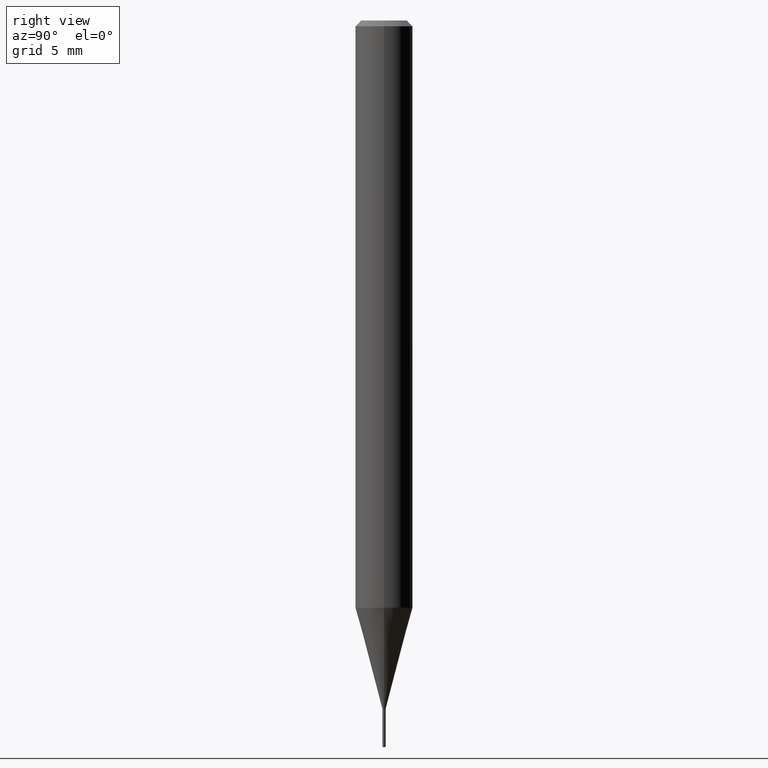
[diagram: clean part render]
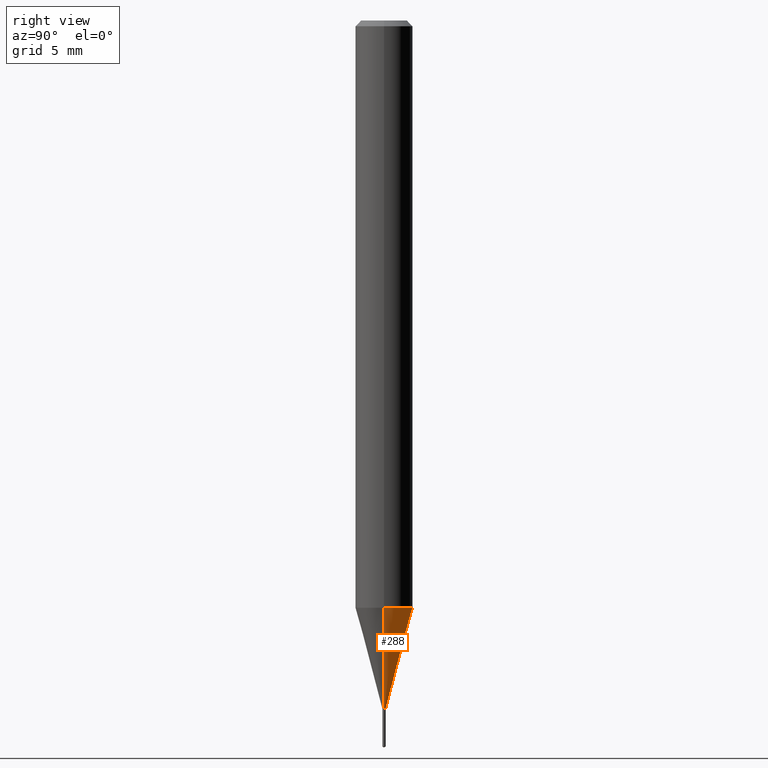
[diagram: same view with one face highlighted and labeled with its STEP entity id]
A machine part, right view. The second image highlights one B-rep face of the part: STEP entity #288.
In plain terms, the highlighted conical surface has half-angle 15 deg.
Its self-contained STEP definition (entity closure, byte-faithful):
#9 = CARTESIAN_POINT ( 'NONE',  ( 0.003350000000000000113, -4.968727093307679884E-15, -1.416399999999999881 ) ) ;
#18 = CIRCLE ( 'NONE', #328, 0.003350000000000000113 ) ;
#25 = DIRECTION ( 'NONE',  ( 1.000000000000000000, -6.982962677686262766E-15, 0.000000000000000000 ) ) ;
#37 = DIRECTION ( 'NONE',  ( 0.2588190451025212391, 1.565188264969622362E-15, 0.9659258262890679791 ) ) ;
#45 = CARTESIAN_POINT ( 'NONE',  ( 3.463762017080627501E-29, -4.945334168337430947E-15, -1.416399999999999881 ) ) ;
#46 = VERTEX_POINT ( 'NONE', #303 ) ;
#70 = EDGE_CURVE ( 'NONE', #481, #46, #18, .T. ) ;
#78 = CARTESIAN_POINT ( 'NONE',  ( -0.05905000000000015792, -3.799966196582654549E-15, -1.208524770018413408 ) ) ;
#81 = VERTEX_POINT ( 'NONE', #237 ) ;
#86 = ORIENTED_EDGE ( 'NONE', *, *, #105, .F. ) ;
#91 = CARTESIAN_POINT ( 'NONE',  ( 2.955409626582096145E-29, -4.219541682048994042E-15, -1.208524770018413408 ) ) ;
#95 = DIRECTION ( 'NONE',  ( -2.445468806185136597E-29, 3.491481338843145583E-15, 1.000000000000000000 ) ) ;
#96 = AXIS2_PLACEMENT_3D ( 'NONE', #91, #95, #25 ) ;
#104 = CONICAL_SURFACE ( 'NONE', #349, 0.003350000000000000113, 0.2617993877991499629 ) ;
#105 = EDGE_CURVE ( 'NONE', #481, #81, #408, .T. ) ;
#138 = VECTOR ( 'NONE', #37, 39.37007874015748854 ) ;
#186 = VERTEX_POINT ( 'NONE', #78 ) ;
#202 = DIRECTION ( 'NONE',  ( 1.000000000000000000, -6.982962677686172836E-15, 0.000000000000000000 ) ) ;
#233 = DIRECTION ( 'NONE',  ( 1.000000000000000000, -6.982962677686172836E-15, 0.000000000000000000 ) ) ;
#237 = CARTESIAN_POINT ( 'NONE',  ( 0.05905000000000015792, -4.631885628166368963E-15, -1.208524770018413408 ) ) ;
#254 = ORIENTED_EDGE ( 'NONE', *, *, #311, .T. ) ;
#265 = CIRCLE ( 'NONE', #96, 0.05905000000000015098 ) ;
#278 = EDGE_LOOP ( 'NONE', ( #348, #254, #383, #86 ) ) ;
#288 = ADVANCED_FACE ( 'NONE', ( #422 ), #104, .T. ) ;
#303 = CARTESIAN_POINT ( 'NONE',  ( -0.003350000000000000113, -4.922403857024178992E-15, -1.416399999999999881 ) ) ;
#311 = EDGE_CURVE ( 'NONE', #46, #186, #438, .T. ) ;
#317 = CARTESIAN_POINT ( 'NONE',  ( -0.003350000000000000113, -4.921530986689467846E-15, -1.416399999999999881 ) ) ;
#327 = CARTESIAN_POINT ( 'NONE',  ( 3.463762017080627501E-29, -4.945334168337430947E-15, -1.416399999999999881 ) ) ;
#328 = AXIS2_PLACEMENT_3D ( 'NONE', #327, #371, #233 ) ;
#348 = ORIENTED_EDGE ( 'NONE', *, *, #70, .T. ) ;
#349 = AXIS2_PLACEMENT_3D ( 'NONE', #45, #382, #202 ) ;
#371 = DIRECTION ( 'NONE',  ( -2.445468806185136597E-29, 3.491481338843145583E-15, 1.000000000000000000 ) ) ;
#372 = CARTESIAN_POINT ( 'NONE',  ( 0.003350000000000000113, -4.968727093307679884E-15, -1.416399999999999881 ) ) ;
#382 = DIRECTION ( 'NONE',  ( -2.445468806185136597E-29, 3.491481338843145583E-15, 1.000000000000000000 ) ) ;
#383 = ORIENTED_EDGE ( 'NONE', *, *, #385, .F. ) ;
#385 = EDGE_CURVE ( 'NONE', #81, #186, #265, .T. ) ;
#399 = DIRECTION ( 'NONE',  ( -0.2588190451025212391, 5.211531920934549464E-15, 0.9659258262890679791 ) ) ;
#408 = LINE ( 'NONE', #372, #138 ) ;
#422 = FACE_OUTER_BOUND ( 'NONE', #278, .T. ) ;
#438 = LINE ( 'NONE', #317, #486 ) ;
#481 = VERTEX_POINT ( 'NONE', #9 ) ;
#486 = VECTOR ( 'NONE', #399, 39.37007874015748854 ) ;